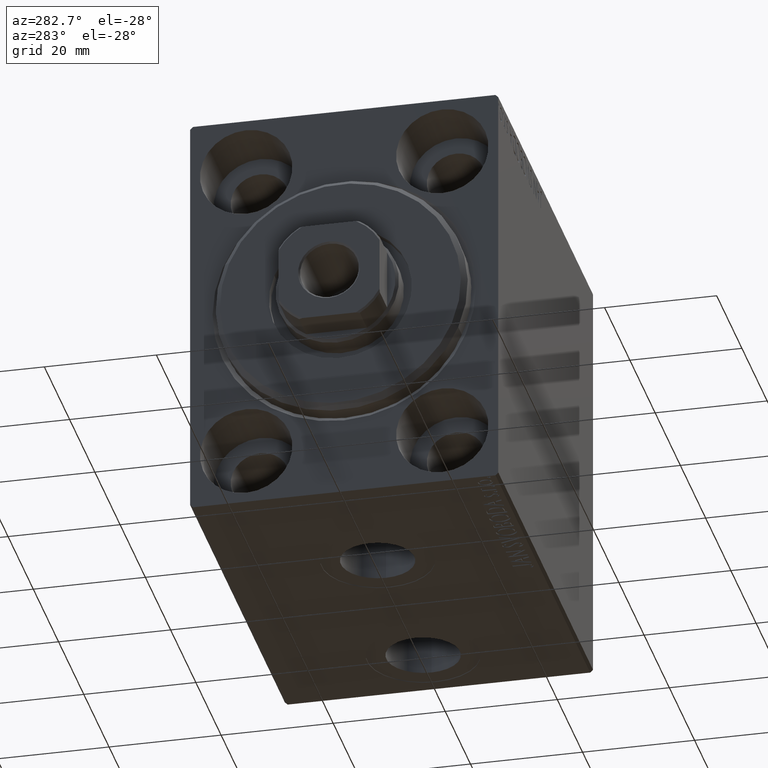
[diagram: clean part render]
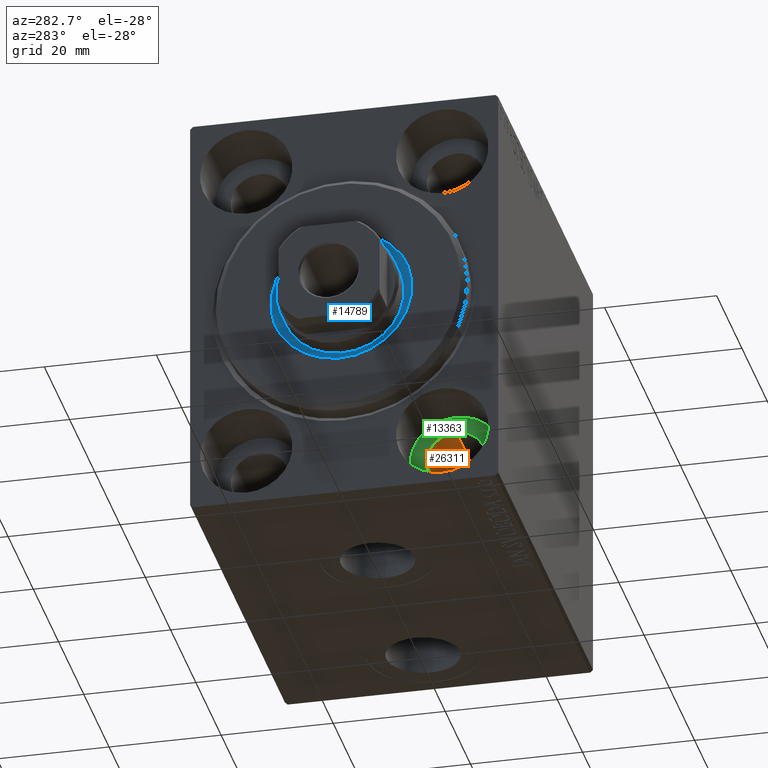
[diagram: same view with three faces highlighted in distinct colors, each labeled with its STEP entity id]
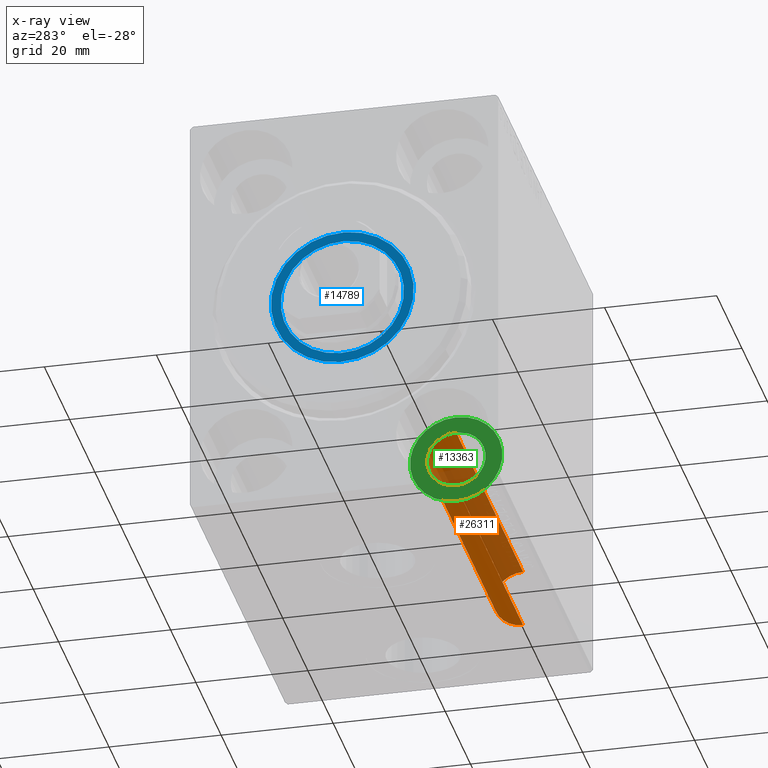
[diagram: x-ray of the same camera — body ghosted, the three highlighted faces saturated]
A machine part, auxiliary view with three faces highlighted in distinct colors.
The next image is the same camera in x-ray (body ghosted, the three faces saturated) — at least one of them is partly hidden behind the body in this view.
Their STEP definitions:

[orange] entity #26311 — the highlighted cylindrical surface (edge-blend (fillet) strip) has radius 5.25 mm, axis along (-1, -0, -0).
#317 = ORIENTED_EDGE ( 'NONE', *, *, #4647, .T. ) ;
#411 = VERTEX_POINT ( 'NONE', #40650 ) ;
#693 = DIRECTION ( 'NONE',  ( -1.000000000000000000, 0.000000000000000000, 0.000000000000000000 ) ) ;
#2211 = EDGE_CURVE ( 'NONE', #21954, #411, #41279, .T. ) ;
#3200 = DIRECTION ( 'NONE',  ( -1.000000000000000000, -0.000000000000000000, -0.000000000000000000 ) ) ;
#3324 = AXIS2_PLACEMENT_3D ( 'NONE', #13372, #40733, #16699 ) ;
#4647 = EDGE_CURVE ( 'NONE', #29438, #411, #37142, .T. ) ;
#8043 = DIRECTION ( 'NONE',  ( -1.000000000000000000, -0.000000000000000000, -0.000000000000000000 ) ) ;
#8788 = VERTEX_POINT ( 'NONE', #43839 ) ;
#10160 = EDGE_LOOP ( 'NONE', ( #42819, #38501, #14394, #317 ) ) ;
#10740 = CARTESIAN_POINT ( 'NONE',  ( 75.00000000000000000, -17.50000000000000355, -27.50000000000000355 ) ) ;
#11123 = DIRECTION ( 'NONE',  ( 0.000000000000000000, 0.000000000000000000, 1.000000000000000000 ) ) ;
#11493 = VECTOR ( 'NONE', #24364, 1000.000000000000000 ) ;
#13372 = CARTESIAN_POINT ( 'NONE',  ( 64.00000000000000000, -17.50000000000000355, -27.50000000000000355 ) ) ;
#14394 = ORIENTED_EDGE ( 'NONE', *, *, #22794, .T. ) ;
#15734 = EDGE_CURVE ( 'NONE', #8788, #21954, #22483, .T. ) ;
#16699 = DIRECTION ( 'NONE',  ( 0.000000000000000000, 0.000000000000000000, -1.000000000000000000 ) ) ;
#17856 = CARTESIAN_POINT ( 'NONE',  ( 75.00000000000000000, -17.50000000000000355, -22.25000000000000355 ) ) ;
#21954 = VERTEX_POINT ( 'NONE', #26440 ) ;
#22483 = CIRCLE ( 'NONE', #3324, 5.249999999999997335 ) ;
#22794 = EDGE_CURVE ( 'NONE', #8788, #29438, #24961, .T. ) ;
#24100 = DIRECTION ( 'NONE',  ( 0.000000000000000000, 0.000000000000000000, 1.000000000000000000 ) ) ;
#24364 = DIRECTION ( 'NONE',  ( -1.000000000000000000, -0.000000000000000000, -0.000000000000000000 ) ) ;
#24961 = LINE ( 'NONE', #17856, #25392 ) ;
#25392 = VECTOR ( 'NONE', #8043, 1000.000000000000000 ) ;
#26311 = ADVANCED_FACE ( 'NONE', ( #37671 ), #43679, .F. ) ;
#26440 = CARTESIAN_POINT ( 'NONE',  ( 64.00000000000000000, -17.50000000000000355, -32.75000000000000000 ) ) ;
#29438 = VERTEX_POINT ( 'NONE', #43378 ) ;
#31156 = AXIS2_PLACEMENT_3D ( 'NONE', #10740, #3200, #24100 ) ;
#32173 = AXIS2_PLACEMENT_3D ( 'NONE', #41396, #693, #11123 ) ;
#37142 = CIRCLE ( 'NONE', #32173, 5.250000000000000888 ) ;
#37671 = FACE_OUTER_BOUND ( 'NONE', #10160, .T. ) ;
#38501 = ORIENTED_EDGE ( 'NONE', *, *, #15734, .F. ) ;
#38578 = CARTESIAN_POINT ( 'NONE',  ( 75.00000000000000000, -17.50000000000000355, -32.75000000000000000 ) ) ;
#40650 = CARTESIAN_POINT ( 'NONE',  ( 10.99999999999999645, -17.50000000000000355, -32.75000000000000000 ) ) ;
#40733 = DIRECTION ( 'NONE',  ( -1.000000000000000000, -0.000000000000000000, -0.000000000000000000 ) ) ;
#41279 = LINE ( 'NONE', #38578, #11493 ) ;
#41396 = CARTESIAN_POINT ( 'NONE',  ( 10.99999999999999645, -17.50000000000000355, -27.50000000000000355 ) ) ;
#42819 = ORIENTED_EDGE ( 'NONE', *, *, #2211, .F. ) ;
#43378 = CARTESIAN_POINT ( 'NONE',  ( 10.99999999999999645, -17.50000000000000355, -22.25000000000000355 ) ) ;
#43679 = CYLINDRICAL_SURFACE ( 'NONE', #31156, 5.250000000000000888 ) ;
#43839 = CARTESIAN_POINT ( 'NONE',  ( 64.00000000000000000, -17.50000000000000355, -22.25000000000000355 ) ) ;

[blue] entity #14789 — the highlighted planar face has unit normal (-1, 0, 0).
#732 = FACE_OUTER_BOUND ( 'NONE', #5048, .T. ) ;
#2958 = EDGE_CURVE ( 'NONE', #31059, #41105, #25024, .T. ) ;
#3044 = DIRECTION ( 'NONE',  ( 1.000000000000000000, 0.000000000000000000, 0.000000000000000000 ) ) ;
#3343 = DIRECTION ( 'NONE',  ( 0.000000000000000000, 0.000000000000000000, -1.000000000000000000 ) ) ;
#3637 = CARTESIAN_POINT ( 'NONE',  ( 1.500000000000000000, 0.000000000000000000, 0.000000000000000000 ) ) ;
#4019 = CARTESIAN_POINT ( 'NONE',  ( 1.500000000000000000, 1.561424668912874914E-15, -12.75000000000000000 ) ) ;
#5048 = EDGE_LOOP ( 'NONE', ( #23106, #29315 ) ) ;
#5556 = CARTESIAN_POINT ( 'NONE',  ( 1.499999999999999556, 1.347111479062088405E-15, 11.00000000000000000 ) ) ;
#6051 = ORIENTED_EDGE ( 'NONE', *, *, #27066, .F. ) ;
#6826 = CIRCLE ( 'NONE', #31693, 12.75000000000000000 ) ;
#7556 = DIRECTION ( 'NONE',  ( 0.000000000000000000, 0.000000000000000000, -1.000000000000000000 ) ) ;
#10146 = CARTESIAN_POINT ( 'NONE',  ( 1.500000000000000000, 0.000000000000000000, 0.000000000000000000 ) ) ;
#11144 = AXIS2_PLACEMENT_3D ( 'NONE', #33815, #26253, #3343 ) ;
#11332 = CARTESIAN_POINT ( 'NONE',  ( 1.500000000000000000, 0.000000000000000000, 0.000000000000000000 ) ) ;
#12669 = CARTESIAN_POINT ( 'NONE',  ( 1.499999999999999556, 0.000000000000000000, 0.000000000000000000 ) ) ;
#14484 = ORIENTED_EDGE ( 'NONE', *, *, #35043, .F. ) ;
#14789 = ADVANCED_FACE ( 'NONE', ( #41649, #732 ), #34538, .T. ) ;
#15802 = EDGE_CURVE ( 'NONE', #41105, #31059, #6826, .T. ) ;
#17191 = DIRECTION ( 'NONE',  ( 1.000000000000000000, 0.000000000000000000, 0.000000000000000000 ) ) ;
#19751 = CARTESIAN_POINT ( 'NONE',  ( 1.499999999999999556, 0.000000000000000000, -11.00000000000000000 ) ) ;
#21463 = AXIS2_PLACEMENT_3D ( 'NONE', #10146, #3044, #34386 ) ;
#21865 = CARTESIAN_POINT ( 'NONE',  ( 1.500000000000000000, 0.000000000000000000, 12.75000000000000000 ) ) ;
#23106 = ORIENTED_EDGE ( 'NONE', *, *, #2958, .T. ) ;
#24080 = AXIS2_PLACEMENT_3D ( 'NONE', #12669, #32248, #29579 ) ;
#24954 = VERTEX_POINT ( 'NONE', #19751 ) ;
#25024 = CIRCLE ( 'NONE', #21463, 12.75000000000000000 ) ;
#26253 = DIRECTION ( 'NONE',  ( 1.000000000000000000, 0.000000000000000000, 0.000000000000000000 ) ) ;
#27066 = EDGE_CURVE ( 'NONE', #27122, #24954, #34056, .T. ) ;
#27122 = VERTEX_POINT ( 'NONE', #5556 ) ;
#29315 = ORIENTED_EDGE ( 'NONE', *, *, #15802, .T. ) ;
#29579 = DIRECTION ( 'NONE',  ( 0.000000000000000000, 0.000000000000000000, -1.000000000000000000 ) ) ;
#31059 = VERTEX_POINT ( 'NONE', #21865 ) ;
#31693 = AXIS2_PLACEMENT_3D ( 'NONE', #11332, #34488, #7556 ) ;
#32248 = DIRECTION ( 'NONE',  ( 1.000000000000000000, 0.000000000000000000, 0.000000000000000000 ) ) ;
#33815 = CARTESIAN_POINT ( 'NONE',  ( 1.499999999999999556, 0.000000000000000000, 0.000000000000000000 ) ) ;
#34056 = CIRCLE ( 'NONE', #24080, 11.00000000000000000 ) ;
#34386 = DIRECTION ( 'NONE',  ( 0.000000000000000000, 0.000000000000000000, -1.000000000000000000 ) ) ;
#34488 = DIRECTION ( 'NONE',  ( 1.000000000000000000, 0.000000000000000000, 0.000000000000000000 ) ) ;
#34538 = PLANE ( 'NONE',  #35248 ) ;
#35043 = EDGE_CURVE ( 'NONE', #24954, #27122, #36008, .T. ) ;
#35248 = AXIS2_PLACEMENT_3D ( 'NONE', #3637, #17191, #41005 ) ;
#36008 = CIRCLE ( 'NONE', #11144, 11.00000000000000000 ) ;
#39652 = EDGE_LOOP ( 'NONE', ( #14484, #6051 ) ) ;
#41005 = DIRECTION ( 'NONE',  ( 0.000000000000000000, 0.000000000000000000, -1.000000000000000000 ) ) ;
#41105 = VERTEX_POINT ( 'NONE', #4019 ) ;
#41649 = FACE_BOUND ( 'NONE', #39652, .T. ) ;

[green] entity #13363 — the highlighted planar face has unit normal (-1, 0, 0).
#411 = VERTEX_POINT ( 'NONE', #40650 ) ;
#693 = DIRECTION ( 'NONE',  ( -1.000000000000000000, 0.000000000000000000, 0.000000000000000000 ) ) ;
#3319 = AXIS2_PLACEMENT_3D ( 'NONE', #26793, #37251, #6539 ) ;
#4647 = EDGE_CURVE ( 'NONE', #29438, #411, #37142, .T. ) ;
#6539 = DIRECTION ( 'NONE',  ( 0.000000000000000000, 0.000000000000000000, 1.000000000000000000 ) ) ;
#8249 = ORIENTED_EDGE ( 'NONE', *, *, #36353, .F. ) ;
#8426 = DIRECTION ( 'NONE',  ( -1.000000000000000000, 0.000000000000000000, 0.000000000000000000 ) ) ;
#8789 = DIRECTION ( 'NONE',  ( -1.000000000000000000, 0.000000000000000000, 0.000000000000000000 ) ) ;
#9126 = EDGE_LOOP ( 'NONE', ( #31305, #30049 ) ) ;
#11123 = DIRECTION ( 'NONE',  ( 0.000000000000000000, 0.000000000000000000, 1.000000000000000000 ) ) ;
#13363 = ADVANCED_FACE ( 'NONE', ( #32603, #36388 ), #29261, .T. ) ;
#13976 = CIRCLE ( 'NONE', #28791, 8.250000000000000000 ) ;
#14011 = CIRCLE ( 'NONE', #32482, 5.250000000000000888 ) ;
#15313 = DIRECTION ( 'NONE',  ( 0.000000000000000000, 0.000000000000000000, 1.000000000000000000 ) ) ;
#16109 = EDGE_CURVE ( 'NONE', #24594, #36376, #13976, .T. ) ;
#16413 = CARTESIAN_POINT ( 'NONE',  ( 11.00000000000000000, -17.50000000000000355, -19.25000000000000355 ) ) ;
#18878 = CIRCLE ( 'NONE', #3319, 8.250000000000000000 ) ;
#19874 = EDGE_CURVE ( 'NONE', #36376, #24594, #18878, .T. ) ;
#20023 = CARTESIAN_POINT ( 'NONE',  ( 11.00000000000000000, -17.50000000000000355, -35.75000000000000711 ) ) ;
#23089 = DIRECTION ( 'NONE',  ( 0.000000000000000000, 0.000000000000000000, 1.000000000000000000 ) ) ;
#23561 = EDGE_LOOP ( 'NONE', ( #28947, #8249 ) ) ;
#24594 = VERTEX_POINT ( 'NONE', #20023 ) ;
#26793 = CARTESIAN_POINT ( 'NONE',  ( 11.00000000000000000, -17.50000000000000355, -27.50000000000000355 ) ) ;
#28791 = AXIS2_PLACEMENT_3D ( 'NONE', #42688, #8426, #15313 ) ;
#28835 = AXIS2_PLACEMENT_3D ( 'NONE', #29487, #8789, #35717 ) ;
#28947 = ORIENTED_EDGE ( 'NONE', *, *, #4647, .F. ) ;
#29261 = PLANE ( 'NONE',  #28835 ) ;
#29438 = VERTEX_POINT ( 'NONE', #43378 ) ;
#29487 = CARTESIAN_POINT ( 'NONE',  ( 11.00000000000000000, 0.000000000000000000, 0.000000000000000000 ) ) ;
#29541 = CARTESIAN_POINT ( 'NONE',  ( 10.99999999999999645, -17.50000000000000355, -27.50000000000000355 ) ) ;
#30049 = ORIENTED_EDGE ( 'NONE', *, *, #16109, .T. ) ;
#31305 = ORIENTED_EDGE ( 'NONE', *, *, #19874, .T. ) ;
#32173 = AXIS2_PLACEMENT_3D ( 'NONE', #41396, #693, #11123 ) ;
#32482 = AXIS2_PLACEMENT_3D ( 'NONE', #29541, #33555, #23089 ) ;
#32603 = FACE_BOUND ( 'NONE', #23561, .T. ) ;
#33555 = DIRECTION ( 'NONE',  ( -1.000000000000000000, 0.000000000000000000, 0.000000000000000000 ) ) ;
#35717 = DIRECTION ( 'NONE',  ( 0.000000000000000000, 0.000000000000000000, 1.000000000000000000 ) ) ;
#36353 = EDGE_CURVE ( 'NONE', #411, #29438, #14011, .T. ) ;
#36376 = VERTEX_POINT ( 'NONE', #16413 ) ;
#36388 = FACE_OUTER_BOUND ( 'NONE', #9126, .T. ) ;
#37142 = CIRCLE ( 'NONE', #32173, 5.250000000000000888 ) ;
#37251 = DIRECTION ( 'NONE',  ( -1.000000000000000000, 0.000000000000000000, 0.000000000000000000 ) ) ;
#40650 = CARTESIAN_POINT ( 'NONE',  ( 10.99999999999999645, -17.50000000000000355, -32.75000000000000000 ) ) ;
#41396 = CARTESIAN_POINT ( 'NONE',  ( 10.99999999999999645, -17.50000000000000355, -27.50000000000000355 ) ) ;
#42688 = CARTESIAN_POINT ( 'NONE',  ( 11.00000000000000000, -17.50000000000000355, -27.50000000000000355 ) ) ;
#43378 = CARTESIAN_POINT ( 'NONE',  ( 10.99999999999999645, -17.50000000000000355, -22.25000000000000355 ) ) ;